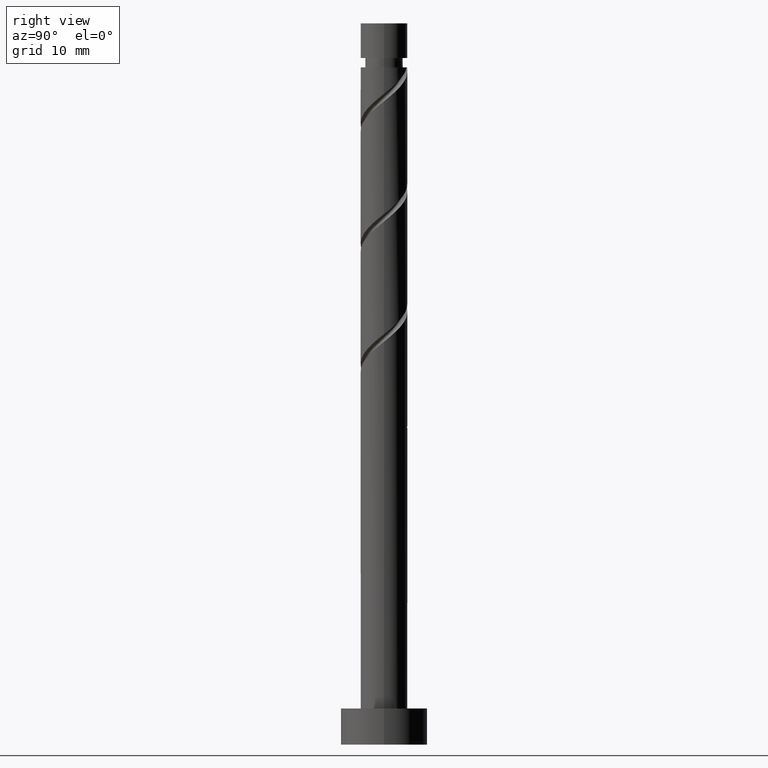
[diagram: clean part render]
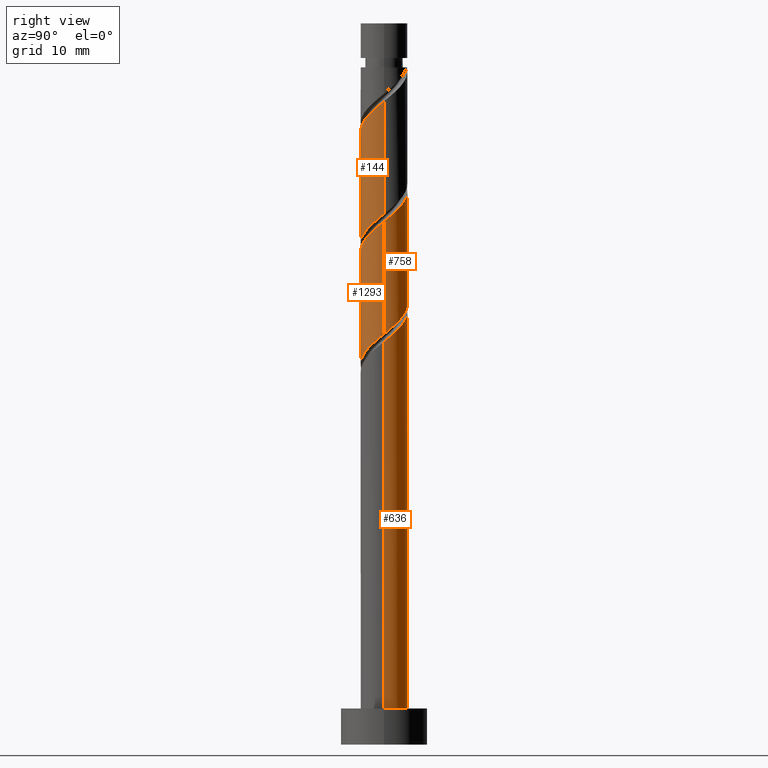
[diagram: same view with one multi-face feature highlighted, each face labeled with its STEP entity id]
A machine part, right view. The highlighted faces form ONE feature: a constant-radius fillet chain: 4 tangent blend faces with common blend radius 3.25 mm. The faces share edges in the B-rep.
Their STEP definitions:
[1] entity #144 (Cylinder):
#9 = DIRECTION ( 'NONE',  ( -1.000000000000000000, 0.000000000000000000, 0.000000000000000000 ) ) ;
#11 = CARTESIAN_POINT ( 'NONE',  ( -2.814480546000102112, -1.723252767229862537, 82.32699046842115820 ) ) ;
#39 =( BOUNDED_CURVE ( )  B_SPLINE_CURVE ( 2, ( #447, #914, #235, #354, #1368, #904, #899, #349, #228, #1137, #123, #571, #1026, #1484, #456, #792, #578, #888, #314, #1473, #1446 ),
 .UNSPECIFIED., .F., .T. ) 
 B_SPLINE_CURVE_WITH_KNOTS ( ( 3, 2, 2, 2, 2, 2, 2, 2, 2, 2, 3 ),
 ( 0.5545248053855290626, 0.5555555555555555802, 0.5694444444444444198, 0.5833333333333333703, 0.5972222222222222099, 0.6111111111111111605, 0.6250000000000000000, 0.6388888888888888395, 0.6527777777777777901, 0.6666666666666666297, 0.6795248053855290626 ),
 .UNSPECIFIED. ) 
 CURVE ( )  GEOMETRIC_REPRESENTATION_ITEM ( )  RATIONAL_B_SPLINE_CURVE ( ( 0.9071930855141184802, 0.9080659294509660917, 0.9090909090909061741, 0.8952797754656408591, 0.9090909090909061741, 0.8952797754656408591, 0.9090909090909061741, 0.8952797754656408591, 0.9090909090909061741, 0.8952797754656408591, 0.9090909090909061741, 0.8952797754656408591, 0.9090909090909061741, 0.8952797754656408591, 0.9090909090909061741, 0.8952797754656408591, 0.9090909090909061741, 0.8952797754656408591, 0.9090909090909061741, 0.8963047551055809414, 0.9071930855141184802 ) ) 
 REPRESENTATION_ITEM ( '' )  );
#58 = EDGE_CURVE ( 'NONE', #1297, #692, #666, .T. ) ;
#123 = CARTESIAN_POINT ( 'NONE',  ( 0.4815956274168009532, -3.214119732003307917, 69.82699046842114399 ) ) ;
#144 = ADVANCED_FACE ( 'NONE', ( #581 ), #1046, .T. ) ;
#228 = CARTESIAN_POINT ( 'NONE',  ( 1.551845548691958454, -2.855569188971780026, 70.75291639434708202 ) ) ;
#230 = CARTESIAN_POINT ( 'NONE',  ( 1.208343267675765720, -3.070961965091894008, 86.03069417212486769 ) ) ;
#235 = CARTESIAN_POINT ( 'NONE',  ( 3.248918234259666971, -0.08384692656885367468, 73.53069417212483927 ) ) ;
#244 = EDGE_CURVE ( 'NONE', #414, #296, #1379, .T. ) ;
#276 = ORIENTED_EDGE ( 'NONE', *, *, #58, .T. ) ;
#296 = VERTEX_POINT ( 'NONE', #709 ) ;
#314 = CARTESIAN_POINT ( 'NONE',  ( -3.081661828113088308, -1.032405141962541073, 66.12328676471744870 ) ) ;
#330 = CARTESIAN_POINT ( 'NONE',  ( 3.250000000000004885, 2.308070331495079945E-15, 89.20354298750649491 ) ) ;
#349 = CARTESIAN_POINT ( 'NONE',  ( 2.055359441987472557, -2.581936948845056090, 71.21587935731001551 ) ) ;
#354 = CARTESIAN_POINT ( 'NONE',  ( 3.234133758856097440, -0.6567188693845378289, 73.06773120916186315 ) ) ;
#358 = CARTESIAN_POINT ( 'NONE',  ( 3.250000000000000444, 3.980102097228898231E-16, 100.0000000000000000 ) ) ;
#381 = AXIS2_PLACEMENT_3D ( 'NONE', #1037, #1267, #9 ) ;
#394 = CARTESIAN_POINT ( 'NONE',  ( -3.248918234259673188, -0.08384692656885182893, 80.93810157953225826 ) ) ;
#414 = VERTEX_POINT ( 'NONE', #330 ) ;
#447 = CARTESIAN_POINT ( 'NONE',  ( 3.250000000000000000, -3.062488142113234545E-16, 73.59858609748397384 ) ) ;
#456 = CARTESIAN_POINT ( 'NONE',  ( -1.697072685567708961, -2.771722262402927850, 67.97513861656928214 ) ) ;
#467 = CARTESIAN_POINT ( 'NONE',  ( 0.6467418341193036380, -3.185000000000004494, 85.56773120916189157 ) ) ;
#551 = CARTESIAN_POINT ( 'NONE',  ( -3.250000000000000444, 0.000000000000000000, 100.0000000000000000 ) ) ;
#555 = CARTESIAN_POINT ( 'NONE',  ( 0.08514040056284115365, -3.299038034908117201, 85.10476824619892966 ) ) ;
#565 = CARTESIAN_POINT ( 'NONE',  ( -1.048331655396447459, -3.129201429098509291, 84.17884232027302005 ) ) ;
#571 = CARTESIAN_POINT ( 'NONE',  ( -0.08514040056284385982, -3.299038034908111428, 69.36402750545815366 ) ) ;
#578 = CARTESIAN_POINT ( 'NONE',  ( -2.542711525011296825, -2.024133913696108955, 67.04921269064335831 ) ) ;
#581 = FACE_OUTER_BOUND ( 'NONE', #712, .T. ) ;
#592 = ORIENTED_EDGE ( 'NONE', *, *, #1470, .F. ) ;
#666 = LINE ( 'NONE', #551, #711 ) ;
#692 = VERTEX_POINT ( 'NONE', #1295 ) ;
#696 = CARTESIAN_POINT ( 'NONE',  ( -2.055359441987476554, -2.581936948845059643, 83.25291639434709623 ) ) ;
#709 = CARTESIAN_POINT ( 'NONE',  ( 3.250000000000000000, -3.062488142113234545E-16, 73.59858609748397384 ) ) ;
#711 = VECTOR ( 'NONE', #785, 1000.000000000000000 ) ;
#712 = EDGE_LOOP ( 'NONE', ( #1115, #592, #276, #1153 ) ) ;
#752 =( BOUNDED_CURVE ( )  B_SPLINE_CURVE ( 2, ( #1072, #1258, #394, #805, #1269, #11, #920, #696, #1177, #565, #1029, #555, #467, #230, #1479, #1148, #915, #1016, #1043, #1034, #1139 ),
 .UNSPECIFIED., .F., .T. ) 
 B_SPLINE_CURVE_WITH_KNOTS ( ( 3, 2, 2, 2, 2, 2, 2, 2, 2, 2, 3 ),
 ( 0.5545248053855288406, 0.5555555555555555802, 0.5694444444444444198, 0.5833333333333332593, 0.5972222222222222099, 0.6111111111111111605, 0.6250000000000000000, 0.6388888888888888395, 0.6527777777777777901, 0.6666666666666667407, 0.6795248053855291737 ),
 .UNSPECIFIED. ) 
 CURVE ( )  GEOMETRIC_REPRESENTATION_ITEM ( )  RATIONAL_B_SPLINE_CURVE ( ( 0.9071930855141243644, 0.9080659294509720869, 0.9090909090909125023, 0.8952797754656470763, 0.9090909090909125023, 0.8952797754656470763, 0.9090909090909125023, 0.8952797754656470763, 0.9090909090909125023, 0.8952797754656470763, 0.9090909090909125023, 0.8952797754656470763, 0.9090909090909125023, 0.8952797754656470763, 0.9090909090909125023, 0.8952797754656470763, 0.9090909090909125023, 0.8952797754656470763, 0.9090909090909125023, 0.8963047551055870477, 0.9071930855141250305 ) ) 
 REPRESENTATION_ITEM ( '' )  );
#785 = DIRECTION ( 'NONE',  ( -0.000000000000000000, -0.000000000000000000, -1.000000000000000000 ) ) ;
#792 = CARTESIAN_POINT ( 'NONE',  ( -2.185802103459652646, -2.472482559713967909, 67.51217565360633444 ) ) ;
#802 = DIRECTION ( 'NONE',  ( -0.000000000000000000, -0.000000000000000000, -1.000000000000000000 ) ) ;
#805 = CARTESIAN_POINT ( 'NONE',  ( -3.234133758856102769, -0.6567188693845373848, 81.40106454249522017 ) ) ;
#888 = CARTESIAN_POINT ( 'NONE',  ( -2.899620946562940116, -1.575785267678251111, 66.58624972768039640 ) ) ;
#899 = CARTESIAN_POINT ( 'NONE',  ( 2.434919993993784004, -2.152594858037458980, 71.67884232027297742 ) ) ;
#904 = CARTESIAN_POINT ( 'NONE',  ( 2.814480546000095895, -1.723252767229862537, 72.14180528323595354 ) ) ;
#914 = CARTESIAN_POINT ( 'NONE',  ( 3.250000000000000000, -0.04193044157906965219, 73.56456872355161636 ) ) ;
#915 = CARTESIAN_POINT ( 'NONE',  ( 2.542711525011299489, -2.024133913696113396, 87.41958306101375342 ) ) ;
#920 = CARTESIAN_POINT ( 'NONE',  ( -2.434919993993788889, -2.152594858037460313, 82.78995343138410590 ) ) ;
#933 = EDGE_CURVE ( 'NONE', #296, #692, #39, .T. ) ;
#1016 = CARTESIAN_POINT ( 'NONE',  ( 2.899620946562943669, -1.575785267678254442, 87.88254602397670112 ) ) ;
#1026 = CARTESIAN_POINT ( 'NONE',  ( -0.6467418341193040821, -3.184999999999999609, 68.90106454249522017 ) ) ;
#1029 = CARTESIAN_POINT ( 'NONE',  ( -0.4815956274168030071, -3.214119732003312802, 84.64180528323596775 ) ) ;
#1034 = CARTESIAN_POINT ( 'NONE',  ( 3.250000000000005773, -0.5299267084164828168, 88.77362347514082330 ) ) ;
#1037 = CARTESIAN_POINT ( 'NONE',  ( 0.000000000000000000, 0.000000000000000000, 100.0000000000000000 ) ) ;
#1043 = CARTESIAN_POINT ( 'NONE',  ( 3.081661828113093637, -1.032405141962545292, 88.34550898693969145 ) ) ;
#1046 = CYLINDRICAL_SURFACE ( 'NONE', #381, 3.250000000000000444 ) ;
#1072 = CARTESIAN_POINT ( 'NONE',  ( -3.250000000000005773, 2.158680666026143248E-15, 80.87020965417312368 ) ) ;
#1115 = ORIENTED_EDGE ( 'NONE', *, *, #244, .F. ) ;
#1137 = CARTESIAN_POINT ( 'NONE',  ( 1.048331655396443907, -3.129201429098505294, 70.28995343138409169 ) ) ;
#1139 = CARTESIAN_POINT ( 'NONE',  ( 3.250000000000004885, 2.308070331495079551E-15, 89.20354298750648070 ) ) ;
#1145 = VECTOR ( 'NONE', #802, 1000.000000000000000 ) ;
#1148 = CARTESIAN_POINT ( 'NONE',  ( 2.185802103459654422, -2.472482559713971462, 86.95662009805079151 ) ) ;
#1153 = ORIENTED_EDGE ( 'NONE', *, *, #933, .F. ) ;
#1177 = CARTESIAN_POINT ( 'NONE',  ( -1.551845548691963117, -2.855569188971784467, 83.71587935731004393 ) ) ;
#1258 = CARTESIAN_POINT ( 'NONE',  ( -3.250000000000006217, -0.04193044157905831404, 80.90422702810549538 ) ) ;
#1267 = DIRECTION ( 'NONE',  ( -0.000000000000000000, -0.000000000000000000, -1.000000000000000000 ) ) ;
#1269 = CARTESIAN_POINT ( 'NONE',  ( -3.024307152428102885, -1.189985818307200072, 81.86402750545819629 ) ) ;
#1295 = CARTESIAN_POINT ( 'NONE',  ( -3.250000000000000000, -9.486243757277579299E-16, 65.26525276415064525 ) ) ;
#1297 = VERTEX_POINT ( 'NONE', #1325 ) ;
#1325 = CARTESIAN_POINT ( 'NONE',  ( -3.250000000000005773, 2.158680666026143248E-15, 80.87020965417312368 ) ) ;
#1368 = CARTESIAN_POINT ( 'NONE',  ( 3.024307152428096224, -1.189985818307198517, 72.60476824619890124 ) ) ;
#1379 = LINE ( 'NONE', #358, #1145 ) ;
#1446 = CARTESIAN_POINT ( 'NONE',  ( -3.250000000000000000, -9.486243757277579299E-16, 65.26525276415064525 ) ) ;
#1470 = EDGE_CURVE ( 'NONE', #1297, #414, #752, .T. ) ;
#1473 = CARTESIAN_POINT ( 'NONE',  ( -3.249999999999999556, -0.5299267084164832609, 65.69517227651626001 ) ) ;
#1479 = CARTESIAN_POINT ( 'NONE',  ( 1.697072685567710737, -2.771722262402933179, 86.49365713508781539 ) ) ;
#1484 = CARTESIAN_POINT ( 'NONE',  ( -1.208343267675765720, -3.070961965091886903, 68.43810157953224405 ) ) ;
[2] entity #758 (Cylinder):
#46 = CARTESIAN_POINT ( 'NONE',  ( 0.4815956274168050055, 3.214119732003312357, 76.30847194990262494 ) ) ;
#56 = VERTEX_POINT ( 'NONE', #1251 ) ;
#58 = EDGE_CURVE ( 'NONE', #1297, #692, #666, .T. ) ;
#69 = CARTESIAN_POINT ( 'NONE',  ( -0.6467418341193034159, 3.185000000000004494, 77.23439787582856297 ) ) ;
#71 = VECTOR ( 'NONE', #132, 1000.000000000000000 ) ;
#78 = EDGE_CURVE ( 'NONE', #692, #56, #387, .T. ) ;
#121 = CARTESIAN_POINT ( 'NONE',  ( -2.814480546000096339, 1.723252767229860538, 63.80847194990261784 ) ) ;
#132 = DIRECTION ( 'NONE',  ( -0.000000000000000000, -0.000000000000000000, -1.000000000000000000 ) ) ;
#165 = CARTESIAN_POINT ( 'NONE',  ( 3.248918234259673188, 0.08384692656885203710, 72.60476824619891545 ) ) ;
#167 = ORIENTED_EDGE ( 'NONE', *, *, #329, .F. ) ;
#173 = CARTESIAN_POINT ( 'NONE',  ( -3.250000000000005773, 2.158680666026143248E-15, 80.87020965417312368 ) ) ;
#205 = ORIENTED_EDGE ( 'NONE', *, *, #58, .F. ) ;
#271 = CYLINDRICAL_SURFACE ( 'NONE', #1005, 3.250000000000000444 ) ;
#281 = CARTESIAN_POINT ( 'NONE',  ( 1.551845548691963117, 2.855569188971783579, 75.38254602397670112 ) ) ;
#287 = CARTESIAN_POINT ( 'NONE',  ( -2.899620946562944557, 1.575785267678254442, 79.54921269064335831 ) ) ;
#294 = CARTESIAN_POINT ( 'NONE',  ( -1.208343267675765942, 3.070961965091893564, 77.69736083879152488 ) ) ;
#315 = CARTESIAN_POINT ( 'NONE',  ( 3.250000000000000000, -3.062488142113234545E-16, 56.93191943081733086 ) ) ;
#329 = EDGE_CURVE ( 'NONE', #1402, #1297, #1318, .T. ) ;
#333 = CARTESIAN_POINT ( 'NONE',  ( -3.250000000000000000, 0.04193044157906843789, 65.23123539021828776 ) ) ;
#387 =( BOUNDED_CURVE ( )  B_SPLINE_CURVE ( 2, ( #684, #333, #1352, #569, #1121, #121, #453, #1012, #445, #778, #1141, #896, #1247, #679, #903, #1003, #993, #661, #425, #1241, #315 ),
 .UNSPECIFIED., .F., .T. ) 
 B_SPLINE_CURVE_WITH_KNOTS ( ( 3, 2, 2, 2, 2, 2, 2, 2, 2, 2, 3 ),
 ( 0.6795248053855290626, 0.6805555555555555802, 0.6944444444444444198, 0.7083333333333333703, 0.7222222222222222099, 0.7361111111111111605, 0.7500000000000000000, 0.7638888888888888395, 0.7777777777777777901, 0.7916666666666666297, 0.8045248053855289516 ),
 .UNSPECIFIED. ) 
 CURVE ( )  GEOMETRIC_REPRESENTATION_ITEM ( )  RATIONAL_B_SPLINE_CURVE ( ( 0.9071930855141184802, 0.9080659294509660917, 0.9090909090909061741, 0.8952797754656408591, 0.9090909090909061741, 0.8952797754656408591, 0.9090909090909061741, 0.8952797754656408591, 0.9090909090909061741, 0.8952797754656408591, 0.9090909090909061741, 0.8952797754656408591, 0.9090909090909061741, 0.8952797754656408591, 0.9090909090909061741, 0.8952797754656408591, 0.9090909090909061741, 0.8952797754656408591, 0.9090909090909061741, 0.8963047551055810525, 0.9071930855141182581 ) ) 
 REPRESENTATION_ITEM ( '' )  );
#411 = CARTESIAN_POINT ( 'NONE',  ( -3.081661828113093637, 1.032405141962544182, 80.01217565360632022 ) ) ;
#425 = CARTESIAN_POINT ( 'NONE',  ( 3.081661828113088308, 1.032405141962542183, 57.78995343138409169 ) ) ;
#445 = CARTESIAN_POINT ( 'NONE',  ( -1.551845548691958454, 2.855569188971780026, 62.41958306101373211 ) ) ;
#453 = CARTESIAN_POINT ( 'NONE',  ( -2.434919993993784004, 2.152594858037458092, 63.34550898693966303 ) ) ;
#492 = CARTESIAN_POINT ( 'NONE',  ( 3.250000000000005329, 0.04193044157906547498, 72.57089369477215257 ) ) ;
#519 = EDGE_LOOP ( 'NONE', ( #167, #1292, #976, #205 ) ) ;
#526 = CARTESIAN_POINT ( 'NONE',  ( 2.814480546000103001, 1.723252767229860760, 73.99365713508780118 ) ) ;
#530 = DIRECTION ( 'NONE',  ( -1.000000000000000000, 0.000000000000000000, 0.000000000000000000 ) ) ;
#551 = CARTESIAN_POINT ( 'NONE',  ( -3.250000000000000444, 0.000000000000000000, 100.0000000000000000 ) ) ;
#564 = EDGE_CURVE ( 'NONE', #1402, #56, #694, .T. ) ;
#569 = CARTESIAN_POINT ( 'NONE',  ( -3.234133758856097440, 0.6567188693845371628, 64.73439787582854876 ) ) ;
#614 = CARTESIAN_POINT ( 'NONE',  ( 3.250000000000004885, -1.852431851814821124E-15, 72.53687632083978087 ) ) ;
#661 = CARTESIAN_POINT ( 'NONE',  ( 2.899620946562940116, 1.575785267678250889, 58.25291639434706070 ) ) ;
#666 = LINE ( 'NONE', #551, #711 ) ;
#679 = CARTESIAN_POINT ( 'NONE',  ( 1.208343267675764832, 3.070961965091887791, 60.10476824619892255 ) ) ;
#684 = CARTESIAN_POINT ( 'NONE',  ( -3.250000000000000000, -9.486243757277579299E-16, 65.26525276415064525 ) ) ;
#692 = VERTEX_POINT ( 'NONE', #1295 ) ;
#694 = LINE ( 'NONE', #1392, #71 ) ;
#711 = VECTOR ( 'NONE', #785, 1000.000000000000000 ) ;
#720 = CARTESIAN_POINT ( 'NONE',  ( 0.000000000000000000, 0.000000000000000000, 100.0000000000000000 ) ) ;
#731 = CARTESIAN_POINT ( 'NONE',  ( 1.048331655396449014, 3.129201429098509291, 75.84550898693964882 ) ) ;
#758 = ADVANCED_FACE ( 'NONE', ( #826 ), #271, .T. ) ;
#778 = CARTESIAN_POINT ( 'NONE',  ( -1.048331655396445239, 3.129201429098505294, 61.95662009805075598 ) ) ;
#785 = DIRECTION ( 'NONE',  ( -0.000000000000000000, -0.000000000000000000, -1.000000000000000000 ) ) ;
#826 = FACE_OUTER_BOUND ( 'NONE', #519, .T. ) ;
#836 = CARTESIAN_POINT ( 'NONE',  ( 2.434919993993788445, 2.152594858037461645, 74.45662009805080572 ) ) ;
#861 = CARTESIAN_POINT ( 'NONE',  ( 3.234133758856102769, 0.6567188693845369407, 73.06773120916187736 ) ) ;
#896 = CARTESIAN_POINT ( 'NONE',  ( 0.08514040056284269409, 3.299038034908110983, 61.03069417212484638 ) ) ;
#903 = CARTESIAN_POINT ( 'NONE',  ( 1.697072685567710737, 2.771722262402926074, 59.64180528323596064 ) ) ;
#949 = CARTESIAN_POINT ( 'NONE',  ( 3.024307152428102885, 1.189985818307199406, 73.53069417212486769 ) ) ;
#960 = CARTESIAN_POINT ( 'NONE',  ( -3.250000000000001776, 0.5299267084164943631, 80.44029014180749471 ) ) ;
#974 = CARTESIAN_POINT ( 'NONE',  ( -0.08514040056284212510, 3.299038034908117201, 76.77143491286557264 ) ) ;
#976 = ORIENTED_EDGE ( 'NONE', *, *, #78, .F. ) ;
#993 = CARTESIAN_POINT ( 'NONE',  ( 2.542711525011296825, 2.024133913696108511, 58.71587935731002261 ) ) ;
#1003 = CARTESIAN_POINT ( 'NONE',  ( 2.185802103459653534, 2.472482559713966577, 59.17884232027299163 ) ) ;
#1005 = AXIS2_PLACEMENT_3D ( 'NONE', #720, #1098, #530 ) ;
#1012 = CARTESIAN_POINT ( 'NONE',  ( -2.055359441987472557, 2.581936948845056090, 62.88254602397670823 ) ) ;
#1020 = CARTESIAN_POINT ( 'NONE',  ( 3.250000000000004885, -1.852431851814821124E-15, 72.53687632083978087 ) ) ;
#1098 = DIRECTION ( 'NONE',  ( -0.000000000000000000, -0.000000000000000000, -1.000000000000000000 ) ) ;
#1121 = CARTESIAN_POINT ( 'NONE',  ( -3.024307152428096224, 1.189985818307198961, 64.27143491286560106 ) ) ;
#1141 = CARTESIAN_POINT ( 'NONE',  ( -0.4815956274168011197, 3.214119732003307917, 61.49365713508782250 ) ) ;
#1193 = CARTESIAN_POINT ( 'NONE',  ( -2.185802103459654866, 2.472482559713971462, 78.62328676471743449 ) ) ;
#1241 = CARTESIAN_POINT ( 'NONE',  ( 3.249999999999997780, 0.5299267084164858144, 57.36183894318293852 ) ) ;
#1247 = CARTESIAN_POINT ( 'NONE',  ( 0.6467418341193044151, 3.184999999999999609, 60.56773120916188446 ) ) ;
#1251 = CARTESIAN_POINT ( 'NONE',  ( 3.250000000000000000, -3.062488142113234545E-16, 56.93191943081732376 ) ) ;
#1292 = ORIENTED_EDGE ( 'NONE', *, *, #564, .T. ) ;
#1295 = CARTESIAN_POINT ( 'NONE',  ( -3.250000000000000000, -9.486243757277579299E-16, 65.26525276415064525 ) ) ;
#1297 = VERTEX_POINT ( 'NONE', #1325 ) ;
#1303 = CARTESIAN_POINT ( 'NONE',  ( 2.055359441987477442, 2.581936948845059199, 74.91958306101373921 ) ) ;
#1317 = CARTESIAN_POINT ( 'NONE',  ( -2.542711525011299489, 2.024133913696113396, 79.08624972768042483 ) ) ;
#1318 =( BOUNDED_CURVE ( )  B_SPLINE_CURVE ( 2, ( #614, #492, #165, #861, #949, #526, #836, #1303, #281, #731, #46, #974, #69, #294, #1407, #1193, #1317, #287, #411, #960, #173 ),
 .UNSPECIFIED., .F., .T. ) 
 B_SPLINE_CURVE_WITH_KNOTS ( ( 3, 2, 2, 2, 2, 2, 2, 2, 2, 2, 3 ),
 ( 0.4295248053855290071, 0.4305555555555555802, 0.4444444444444444198, 0.4583333333333333703, 0.4722222222222222099, 0.4861111111111111605, 0.5000000000000000000, 0.5138888888888888395, 0.5277777777777777901, 0.5416666666666667407, 0.5545248053855288406 ),
 .UNSPECIFIED. ) 
 CURVE ( )  GEOMETRIC_REPRESENTATION_ITEM ( )  RATIONAL_B_SPLINE_CURVE ( ( 0.9071930855141245864, 0.9080659294509723090, 0.9090909090909125023, 0.8952797754656470763, 0.9090909090909125023, 0.8952797754656470763, 0.9090909090909125023, 0.8952797754656470763, 0.9090909090909125023, 0.8952797754656470763, 0.9090909090909125023, 0.8952797754656470763, 0.9090909090909125023, 0.8952797754656470763, 0.9090909090909125023, 0.8952797754656470763, 0.9090909090909125023, 0.8952797754656470763, 0.9090909090909125023, 0.8963047551055873807, 0.9071930855141243644 ) ) 
 REPRESENTATION_ITEM ( '' )  );
#1325 = CARTESIAN_POINT ( 'NONE',  ( -3.250000000000005773, 2.158680666026143248E-15, 80.87020965417312368 ) ) ;
#1352 = CARTESIAN_POINT ( 'NONE',  ( -3.248918234259666971, 0.08384692656885250894, 65.19736083879152488 ) ) ;
#1392 = CARTESIAN_POINT ( 'NONE',  ( 3.250000000000000444, 3.980102097228898231E-16, 100.0000000000000000 ) ) ;
#1402 = VERTEX_POINT ( 'NONE', #1020 ) ;
#1407 = CARTESIAN_POINT ( 'NONE',  ( -1.697072685567710959, 2.771722262402933179, 78.16032380175448679 ) ) ;
[3] entity #1293 (Cylinder):
#30 = EDGE_CURVE ( 'NONE', #56, #388, #288, .T. ) ;
#56 = VERTEX_POINT ( 'NONE', #1251 ) ;
#63 = DIRECTION ( 'NONE',  ( -0.000000000000000000, -0.000000000000000000, -1.000000000000000000 ) ) ;
#71 = VECTOR ( 'NONE', #132, 1000.000000000000000 ) ;
#89 = CARTESIAN_POINT ( 'NONE',  ( -0.08514040056284385982, -3.299038034908111428, 52.69736083879151778 ) ) ;
#94 = CARTESIAN_POINT ( 'NONE',  ( -3.024307152428102885, -1.189985818307200072, 65.19736083879153909 ) ) ;
#96 = CARTESIAN_POINT ( 'NONE',  ( -1.208343267675765720, -3.070961965091886903, 51.77143491286560106 ) ) ;
#132 = DIRECTION ( 'NONE',  ( -0.000000000000000000, -0.000000000000000000, -1.000000000000000000 ) ) ;
#181 = FACE_OUTER_BOUND ( 'NONE', #535, .T. ) ;
#202 = CARTESIAN_POINT ( 'NONE',  ( -3.081661828113088308, -1.032405141962541073, 49.45662009805077020 ) ) ;
#211 = CARTESIAN_POINT ( 'NONE',  ( -1.697072685567708961, -2.771722262402927850, 51.30847194990262494 ) ) ;
#215 = CARTESIAN_POINT ( 'NONE',  ( -0.4815956274168030071, -3.214119732003312802, 67.97513861656928214 ) ) ;
#233 = CARTESIAN_POINT ( 'NONE',  ( -2.899620946562940116, -1.575785267678251111, 49.91958306101373211 ) ) ;
#288 =( BOUNDED_CURVE ( )  B_SPLINE_CURVE ( 2, ( #404, #438, #1332, #673, #1234, #879, #1135, #1130, #1025, #1114, #340, #89, #558, #96, #211, #1019, #889, #233, #202, #1358, #791 ),
 .UNSPECIFIED., .F., .T. ) 
 B_SPLINE_CURVE_WITH_KNOTS ( ( 3, 2, 2, 2, 2, 2, 2, 2, 2, 2, 3 ),
 ( 0.8045248053855289516, 0.8055555555555555802, 0.8194444444444444198, 0.8333333333333333703, 0.8472222222222222099, 0.8611111111111111605, 0.8750000000000000000, 0.8888888888888888395, 0.9027777777777777901, 0.9166666666666666297, 0.9295248053855290626 ),
 .UNSPECIFIED. ) 
 CURVE ( )  GEOMETRIC_REPRESENTATION_ITEM ( )  RATIONAL_B_SPLINE_CURVE ( ( 0.9071930855141182581, 0.9080659294509659807, 0.9090909090909061741, 0.8952797754656408591, 0.9090909090909061741, 0.8952797754656408591, 0.9090909090909061741, 0.8952797754656408591, 0.9090909090909061741, 0.8952797754656408591, 0.9090909090909061741, 0.8952797754656408591, 0.9090909090909061741, 0.8952797754656408591, 0.9090909090909061741, 0.8952797754656408591, 0.9090909090909061741, 0.8952797754656408591, 0.9090909090909061741, 0.8963047551055809414, 0.9071930855141184802 ) ) 
 REPRESENTATION_ITEM ( '' )  );
#336 = CARTESIAN_POINT ( 'NONE',  ( 2.185802103459654422, -2.472482559713971462, 70.28995343138410590 ) ) ;
#340 = CARTESIAN_POINT ( 'NONE',  ( 0.4815956274168009532, -3.214119732003307917, 53.16032380175447258 ) ) ;
#388 = VERTEX_POINT ( 'NONE', #633 ) ;
#390 = EDGE_CURVE ( 'NONE', #952, #388, #1323, .T. ) ;
#400 = EDGE_CURVE ( 'NONE', #952, #1402, #656, .T. ) ;
#404 = CARTESIAN_POINT ( 'NONE',  ( 3.250000000000000000, -3.062488142113234545E-16, 56.93191943081733086 ) ) ;
#438 = CARTESIAN_POINT ( 'NONE',  ( 3.249999999999999556, -0.04193044157906513497, 56.89790205688495917 ) ) ;
#442 = CARTESIAN_POINT ( 'NONE',  ( 1.208343267675765720, -3.070961965091894008, 69.36402750545816787 ) ) ;
#450 = CARTESIAN_POINT ( 'NONE',  ( -2.814480546000102112, -1.723252767229862537, 65.66032380175447258 ) ) ;
#504 = DIRECTION ( 'NONE',  ( -1.000000000000000000, 0.000000000000000000, 0.000000000000000000 ) ) ;
#535 = EDGE_LOOP ( 'NONE', ( #733, #1282, #650, #1084 ) ) ;
#537 = CARTESIAN_POINT ( 'NONE',  ( 0.000000000000000000, 0.000000000000000000, 100.0000000000000000 ) ) ;
#556 = CARTESIAN_POINT ( 'NONE',  ( -2.055359441987476554, -2.581936948845059643, 66.58624972768039640 ) ) ;
#558 = CARTESIAN_POINT ( 'NONE',  ( -0.6467418341193040821, -3.184999999999999609, 52.23439787582854876 ) ) ;
#564 = EDGE_CURVE ( 'NONE', #1402, #56, #694, .T. ) ;
#566 = CARTESIAN_POINT ( 'NONE',  ( -1.551845548691963117, -2.855569188971784467, 67.04921269064337253 ) ) ;
#633 = CARTESIAN_POINT ( 'NONE',  ( -3.250000000000000000, -9.486243757277579299E-16, 48.59858609748397384 ) ) ;
#648 = CARTESIAN_POINT ( 'NONE',  ( 2.899620946562943669, -1.575785267678254442, 71.21587935731002972 ) ) ;
#650 = ORIENTED_EDGE ( 'NONE', *, *, #390, .T. ) ;
#656 =( BOUNDED_CURVE ( )  B_SPLINE_CURVE ( 2, ( #854, #1209, #1095, #1438, #94, #450, #867, #556, #566, #1008, #215, #1365, #1471, #442, #886, #336, #1349, #648, #1464, #1214, #781 ),
 .UNSPECIFIED., .F., .T. ) 
 B_SPLINE_CURVE_WITH_KNOTS ( ( 3, 2, 2, 2, 2, 2, 2, 2, 2, 2, 3 ),
 ( 0.3045248053855291182, 0.3055555555555555802, 0.3194444444444444198, 0.3333333333333333703, 0.3472222222222222099, 0.3611111111111111605, 0.3750000000000000000, 0.3888888888888888395, 0.4027777777777777901, 0.4166666666666666297, 0.4295248053855290071 ),
 .UNSPECIFIED. ) 
 CURVE ( )  GEOMETRIC_REPRESENTATION_ITEM ( )  RATIONAL_B_SPLINE_CURVE ( ( 0.9071930855141249195, 0.9080659294509725310, 0.9090909090909125023, 0.8952797754656470763, 0.9090909090909125023, 0.8952797754656470763, 0.9090909090909125023, 0.8952797754656470763, 0.9090909090909125023, 0.8952797754656470763, 0.9090909090909125023, 0.8952797754656470763, 0.9090909090909125023, 0.8952797754656470763, 0.9090909090909125023, 0.8952797754656470763, 0.9090909090909125023, 0.8952797754656470763, 0.9090909090909125023, 0.8963047551055872697, 0.9071930855141245864 ) ) 
 REPRESENTATION_ITEM ( '' )  );
#673 = CARTESIAN_POINT ( 'NONE',  ( 3.234133758856097440, -0.6567188693845378289, 56.40106454249522017 ) ) ;
#694 = LINE ( 'NONE', #1392, #71 ) ;
#733 = ORIENTED_EDGE ( 'NONE', *, *, #564, .F. ) ;
#747 = CARTESIAN_POINT ( 'NONE',  ( -3.250000000000000444, 0.000000000000000000, 100.0000000000000000 ) ) ;
#762 = AXIS2_PLACEMENT_3D ( 'NONE', #537, #63, #504 ) ;
#781 = CARTESIAN_POINT ( 'NONE',  ( 3.250000000000004885, -1.852431851814821124E-15, 72.53687632083978087 ) ) ;
#791 = CARTESIAN_POINT ( 'NONE',  ( -3.250000000000000000, -9.486243757277579299E-16, 48.59858609748397384 ) ) ;
#854 = CARTESIAN_POINT ( 'NONE',  ( -3.250000000000004885, 1.807614952174140588E-15, 64.20354298750648070 ) ) ;
#867 = CARTESIAN_POINT ( 'NONE',  ( -2.434919993993788889, -2.152594858037460313, 66.12328676471746292 ) ) ;
#879 = CARTESIAN_POINT ( 'NONE',  ( 2.814480546000095895, -1.723252767229862537, 55.47513861656929635 ) ) ;
#886 = CARTESIAN_POINT ( 'NONE',  ( 1.697072685567710737, -2.771722262402933179, 69.82699046842115820 ) ) ;
#889 = CARTESIAN_POINT ( 'NONE',  ( -2.542711525011296825, -2.024133913696108955, 50.38254602397670823 ) ) ;
#952 = VERTEX_POINT ( 'NONE', #1456 ) ;
#1008 = CARTESIAN_POINT ( 'NONE',  ( -1.048331655396447459, -3.129201429098509291, 67.51217565360634865 ) ) ;
#1019 = CARTESIAN_POINT ( 'NONE',  ( -2.185802103459652646, -2.472482559713967909, 50.84550898693966303 ) ) ;
#1020 = CARTESIAN_POINT ( 'NONE',  ( 3.250000000000004885, -1.852431851814821124E-15, 72.53687632083978087 ) ) ;
#1025 = CARTESIAN_POINT ( 'NONE',  ( 1.551845548691958454, -2.855569188971780026, 54.08624972768039640 ) ) ;
#1084 = ORIENTED_EDGE ( 'NONE', *, *, #30, .F. ) ;
#1089 = DIRECTION ( 'NONE',  ( -0.000000000000000000, -0.000000000000000000, -1.000000000000000000 ) ) ;
#1090 = CYLINDRICAL_SURFACE ( 'NONE', #762, 3.250000000000000444 ) ;
#1095 = CARTESIAN_POINT ( 'NONE',  ( -3.248918234259673188, -0.08384692656885182893, 64.27143491286560106 ) ) ;
#1096 = VECTOR ( 'NONE', #1089, 1000.000000000000000 ) ;
#1114 = CARTESIAN_POINT ( 'NONE',  ( 1.048331655396443907, -3.129201429098505294, 53.62328676471744870 ) ) ;
#1130 = CARTESIAN_POINT ( 'NONE',  ( 2.055359441987472557, -2.581936948845056090, 54.54921269064337253 ) ) ;
#1135 = CARTESIAN_POINT ( 'NONE',  ( 2.434919993993784004, -2.152594858037458980, 55.01217565360633444 ) ) ;
#1209 = CARTESIAN_POINT ( 'NONE',  ( -3.250000000000005329, -0.04193044157906990893, 64.23756036143883819 ) ) ;
#1214 = CARTESIAN_POINT ( 'NONE',  ( 3.250000000000003109, -0.5299267084164891450, 72.10695680847418032 ) ) ;
#1234 = CARTESIAN_POINT ( 'NONE',  ( 3.024307152428096224, -1.189985818307198517, 55.93810157953225115 ) ) ;
#1251 = CARTESIAN_POINT ( 'NONE',  ( 3.250000000000000000, -3.062488142113234545E-16, 56.93191943081732376 ) ) ;
#1282 = ORIENTED_EDGE ( 'NONE', *, *, #400, .F. ) ;
#1293 = ADVANCED_FACE ( 'NONE', ( #181 ), #1090, .T. ) ;
#1323 = LINE ( 'NONE', #747, #1096 ) ;
#1332 = CARTESIAN_POINT ( 'NONE',  ( 3.248918234259666971, -0.08384692656885367468, 56.86402750545818208 ) ) ;
#1349 = CARTESIAN_POINT ( 'NONE',  ( 2.542711525011299489, -2.024133913696113396, 70.75291639434709623 ) ) ;
#1358 = CARTESIAN_POINT ( 'NONE',  ( -3.249999999999999556, -0.5299267084164832609, 49.02850560984959571 ) ) ;
#1365 = CARTESIAN_POINT ( 'NONE',  ( 0.08514040056284115365, -3.299038034908117201, 68.43810157953224405 ) ) ;
#1392 = CARTESIAN_POINT ( 'NONE',  ( 3.250000000000000444, 3.980102097228898231E-16, 100.0000000000000000 ) ) ;
#1402 = VERTEX_POINT ( 'NONE', #1020 ) ;
#1438 = CARTESIAN_POINT ( 'NONE',  ( -3.234133758856102769, -0.6567188693845373848, 64.73439787582856297 ) ) ;
#1456 = CARTESIAN_POINT ( 'NONE',  ( -3.250000000000004885, 1.807614952174140588E-15, 64.20354298750648070 ) ) ;
#1464 = CARTESIAN_POINT ( 'NONE',  ( 3.081661828113093637, -1.032405141962545292, 71.67884232027299163 ) ) ;
#1471 = CARTESIAN_POINT ( 'NONE',  ( 0.6467418341193036380, -3.185000000000004494, 68.90106454249522017 ) ) ;
[4] entity #636 (Cylinder):
#22 = CARTESIAN_POINT ( 'NONE',  ( -2.055359441987472557, 2.581936948845056090, 46.21587935731003682 ) ) ;
#36 = CARTESIAN_POINT ( 'NONE',  ( 3.250000000000004885, -1.852431851814821124E-15, 55.87020965417312368 ) ) ;
#65 = CARTESIAN_POINT ( 'NONE',  ( 0.000000000000000000, 0.000000000000000000, 100.0000000000000000 ) ) ;
#91 = CARTESIAN_POINT ( 'NONE',  ( -3.250000000000003109, 0.5299267084164897001, 47.10695680847418032 ) ) ;
#99 = CARTESIAN_POINT ( 'NONE',  ( 0.000000000000000000, 0.000000000000000000, 43.90106454249525569 ) ) ;
#100 = CARTESIAN_POINT ( 'NONE',  ( -1.208343267675765942, 3.070961965091893564, 61.03069417212484638 ) ) ;
#106 = CARTESIAN_POINT ( 'NONE',  ( -0.08514040056284212510, 3.299038034908117201, 60.10476824619892255 ) ) ;
#143 = VERTEX_POINT ( 'NONE', #689 ) ;
#161 = EDGE_LOOP ( 'NONE', ( #1423, #1319, #529, #871, #299, #719, #806, #1411 ) ) ;
#170 = AXIS2_PLACEMENT_3D ( 'NONE', #477, #707, #934 ) ;
#172 = AXIS2_PLACEMENT_3D ( 'NONE', #99, #204, #334 ) ;
#199 = LINE ( 'NONE', #658, #927 ) ;
#204 = DIRECTION ( 'NONE',  ( -2.370375316168902674E-30, -1.067522139062649961E-14, -1.000000000000000000 ) ) ;
#206 = CARTESIAN_POINT ( 'NONE',  ( -3.081661828113093637, 1.032405141962544182, 46.67884232027299873 ) ) ;
#224 = CARTESIAN_POINT ( 'NONE',  ( 3.250000000000004885, -1.852431851814821124E-15, 55.87020965417312368 ) ) ;
#278 = DIRECTION ( 'NONE',  ( -1.000000000000000000, 0.000000000000000000, 0.000000000000000000 ) ) ;
#299 = ORIENTED_EDGE ( 'NONE', *, *, #863, .F. ) ;
#300 = CARTESIAN_POINT ( 'NONE',  ( -2.899620946562944557, 1.575785267678254442, 46.21587935731003682 ) ) ;
#308 = CARTESIAN_POINT ( 'NONE',  ( -2.899620946562944557, 1.575785267678254442, 62.88254602397672244 ) ) ;
#309 = CARTESIAN_POINT ( 'NONE',  ( -3.250000000000004885, 1.807614952174140588E-15, 47.53687632083978087 ) ) ;
#319 = CARTESIAN_POINT ( 'NONE',  ( -2.185802103459654866, 2.472482559713971462, 61.95662009805077730 ) ) ;
#327 = CARTESIAN_POINT ( 'NONE',  ( -2.185802103459654866, 2.472482559713971462, 45.28995343138411300 ) ) ;
#334 = DIRECTION ( 'NONE',  ( 0.000000000000000000, 1.000000000000000000, -1.067522139062650435E-14 ) ) ;
#383 = VECTOR ( 'NONE', #1000, 1000.000000000000000 ) ;
#388 = VERTEX_POINT ( 'NONE', #633 ) ;
#390 = EDGE_CURVE ( 'NONE', #952, #388, #1323, .T. ) ;
#391 = CYLINDRICAL_SURFACE ( 'NONE', #1312, 3.250000000000000444 ) ;
#398 = VERTEX_POINT ( 'NONE', #642 ) ;
#419 = CARTESIAN_POINT ( 'NONE',  ( 1.551845548691963117, 2.855569188971783579, 58.71587935731003682 ) ) ;
#440 = CARTESIAN_POINT ( 'NONE',  ( -2.542711525011299489, 2.024133913696113396, 45.75291639434708202 ) ) ;
#476 = EDGE_CURVE ( 'NONE', #697, #398, #199, .T. ) ;
#477 = CARTESIAN_POINT ( 'NONE',  ( 0.000000000000000000, 0.000000000000000000, 5.000000000000000000 ) ) ;
#494 = EDGE_CURVE ( 'NONE', #1170, #143, #1127, .T. ) ;
#495 = VERTEX_POINT ( 'NONE', #1454 ) ;
#506 = FACE_OUTER_BOUND ( 'NONE', #161, .T. ) ;
#529 = ORIENTED_EDGE ( 'NONE', *, *, #545, .T. ) ;
#540 = CARTESIAN_POINT ( 'NONE',  ( -3.250000000000000444, 0.000000000000000000, 100.0000000000000000 ) ) ;
#545 = EDGE_CURVE ( 'NONE', #398, #143, #1385, .T. ) ;
#561 = CARTESIAN_POINT ( 'NONE',  ( -1.697072685567710959, 2.771722262402933179, 61.49365713508782250 ) ) ;
#585 = CARTESIAN_POINT ( 'NONE',  ( -2.434919993993784004, 2.152594858037458092, 46.67884232027299873 ) ) ;
#601 = CIRCLE ( 'NONE', #172, 3.250000000000000444 ) ;
#633 = CARTESIAN_POINT ( 'NONE',  ( -3.250000000000000000, -9.486243757277579299E-16, 48.59858609748397384 ) ) ;
#636 = ADVANCED_FACE ( 'NONE', ( #506 ), #391, .T. ) ;
#642 = CARTESIAN_POINT ( 'NONE',  ( 3.250000000000000444, 3.980102097228898231E-16, 5.000000000000000000 ) ) ;
#658 = CARTESIAN_POINT ( 'NONE',  ( 3.250000000000000444, 3.980102097228898231E-16, 100.0000000000000000 ) ) ;
#667 = CARTESIAN_POINT ( 'NONE',  ( 2.814480546000103001, 1.723252767229860760, 57.32699046842114399 ) ) ;
#689 = CARTESIAN_POINT ( 'NONE',  ( -3.250000000000000444, 0.000000000000000000, 5.000000000000000000 ) ) ;
#697 = VERTEX_POINT ( 'NONE', #36 ) ;
#707 = DIRECTION ( 'NONE',  ( 0.000000000000000000, 0.000000000000000000, 1.000000000000000000 ) ) ;
#713 = CARTESIAN_POINT ( 'NONE',  ( 0.08514040056284269409, 3.299038034908110983, 44.36402750545816787 ) ) ;
#719 = ORIENTED_EDGE ( 'NONE', *, *, #1401, .T. ) ;
#747 = CARTESIAN_POINT ( 'NONE',  ( -3.250000000000000444, 0.000000000000000000, 100.0000000000000000 ) ) ;
#766 = CARTESIAN_POINT ( 'NONE',  ( -3.024307152428096224, 1.189985818307198961, 47.60476824619892966 ) ) ;
#773 = CARTESIAN_POINT ( 'NONE',  ( 3.250000000000005329, 0.04193044157906774400, 55.90422702810548117 ) ) ;
#784 = CARTESIAN_POINT ( 'NONE',  ( 0.6467418341193044151, 3.185000000000000053, 43.90106454249522017 ) ) ;
#798 = EDGE_CURVE ( 'NONE', #697, #952, #1477, .T. ) ;
#806 = ORIENTED_EDGE ( 'NONE', *, *, #1203, .F. ) ;
#817 = CARTESIAN_POINT ( 'NONE',  ( -1.551845548691958454, 2.855569188971780026, 45.75291639434707491 ) ) ;
#831 = CARTESIAN_POINT ( 'NONE',  ( -1.048331655396445239, 3.129201429098505294, 45.28995343138410590 ) ) ;
#863 = EDGE_CURVE ( 'NONE', #495, #1170, #1300, .T. ) ;
#865 = CARTESIAN_POINT ( 'NONE',  ( -0.6467418341193034159, 3.185000000000004494, 60.56773120916190578 ) ) ;
#871 = ORIENTED_EDGE ( 'NONE', *, *, #494, .F. ) ;
#872 = CARTESIAN_POINT ( 'NONE',  ( 3.248918234259673188, 0.08384692656885203710, 55.93810157953224405 ) ) ;
#873 = CARTESIAN_POINT ( 'NONE',  ( -3.248918234259666971, 0.08384692656885250894, 48.53069417212484638 ) ) ;
#883 = CARTESIAN_POINT ( 'NONE',  ( -3.250000000000005329, 0.5299267084164830388, 63.77362347514084462 ) ) ;
#891 = CARTESIAN_POINT ( 'NONE',  ( -0.6467418341193034159, 3.185000000000004494, 43.90106454249522017 ) ) ;
#894 =( BOUNDED_CURVE ( )  B_SPLINE_CURVE ( 2, ( #997, #1450, #873, #1338, #766, #1418, #585, #22, #817, #831, #1163, #713, #1172 ),
 .UNSPECIFIED., .F., .T. ) 
 B_SPLINE_CURVE_WITH_KNOTS ( ( 3, 2, 2, 2, 2, 2, 3 ),
 ( 0.9295248053855290626, 0.9305555555555555802, 0.9444444444444444198, 0.9583333333333333703, 0.9722222222222222099, 0.9861111111111111605, 1.000000000000000000 ),
 .UNSPECIFIED. ) 
 CURVE ( )  GEOMETRIC_REPRESENTATION_ITEM ( )  RATIONAL_B_SPLINE_CURVE ( ( 0.9071930855141184802, 0.9080659294509660917, 0.9090909090909061741, 0.8952797754656408591, 0.9090909090909061741, 0.8952797754656408591, 0.9090909090909061741, 0.8952797754656408591, 0.9090909090909061741, 0.8952797754656408591, 0.9090909090909061741, 0.8952797754656408591, 0.9090909090909061741 ) ) 
 REPRESENTATION_ITEM ( '' )  );
#927 = VECTOR ( 'NONE', #1111, 1000.000000000000000 ) ;
#934 = DIRECTION ( 'NONE',  ( 1.000000000000000000, 0.000000000000000000, 0.000000000000000000 ) ) ;
#952 = VERTEX_POINT ( 'NONE', #1456 ) ;
#979 = VERTEX_POINT ( 'NONE', #784 ) ;
#996 = CARTESIAN_POINT ( 'NONE',  ( -1.697072685567710959, 2.771722262402933179, 44.82699046842114399 ) ) ;
#997 = CARTESIAN_POINT ( 'NONE',  ( -3.250000000000000000, -9.486243757277579299E-16, 48.59858609748397384 ) ) ;
#1000 = DIRECTION ( 'NONE',  ( -0.000000000000000000, -0.000000000000000000, -1.000000000000000000 ) ) ;
#1089 = DIRECTION ( 'NONE',  ( -0.000000000000000000, -0.000000000000000000, -1.000000000000000000 ) ) ;
#1096 = VECTOR ( 'NONE', #1089, 1000.000000000000000 ) ;
#1107 = CARTESIAN_POINT ( 'NONE',  ( 1.048331655396449014, 3.129201429098509291, 59.17884232027300584 ) ) ;
#1111 = DIRECTION ( 'NONE',  ( -0.000000000000000000, -0.000000000000000000, -1.000000000000000000 ) ) ;
#1116 = CARTESIAN_POINT ( 'NONE',  ( -1.208343267675765942, 3.070961965091893564, 44.36402750545816787 ) ) ;
#1127 = LINE ( 'NONE', #540, #383 ) ;
#1163 = CARTESIAN_POINT ( 'NONE',  ( -0.4815956274168011197, 3.214119732003307917, 44.82699046842113688 ) ) ;
#1170 = VERTEX_POINT ( 'NONE', #309 ) ;
#1172 = CARTESIAN_POINT ( 'NONE',  ( 0.6467418341193044151, 3.185000000000000053, 43.90106454249522017 ) ) ;
#1203 = EDGE_CURVE ( 'NONE', #388, #979, #894, .T. ) ;
#1211 = CARTESIAN_POINT ( 'NONE',  ( -3.250000000000004885, 1.807614952174140588E-15, 47.53687632083978087 ) ) ;
#1221 = CARTESIAN_POINT ( 'NONE',  ( 2.434919993993788445, 2.152594858037461645, 57.78995343138411300 ) ) ;
#1230 = CARTESIAN_POINT ( 'NONE',  ( -3.250000000000004885, 1.807614952174140588E-15, 64.20354298750648070 ) ) ;
#1298 = DIRECTION ( 'NONE',  ( -0.000000000000000000, -0.000000000000000000, -1.000000000000000000 ) ) ;
#1300 =( BOUNDED_CURVE ( )  B_SPLINE_CURVE ( 2, ( #891, #1116, #996, #327, #440, #300, #206, #91, #1211 ),
 .UNSPECIFIED., .F., .T. ) 
 B_SPLINE_CURVE_WITH_KNOTS ( ( 3, 2, 2, 2, 3 ),
 ( 0.000000000000000000, 0.01388888888888883955, 0.02777777777777779011, 0.04166666666666662966, 0.05452480538552895162 ),
 .UNSPECIFIED. ) 
 CURVE ( )  GEOMETRIC_REPRESENTATION_ITEM ( )  RATIONAL_B_SPLINE_CURVE ( ( 0.9090909090909125023, 0.8952797754656470763, 0.9090909090909125023, 0.8952797754656470763, 0.9090909090909125023, 0.8952797754656470763, 0.9090909090909125023, 0.8963047551055871587, 0.9071930855141245864 ) ) 
 REPRESENTATION_ITEM ( '' )  );
#1312 = AXIS2_PLACEMENT_3D ( 'NONE', #65, #1298, #278 ) ;
#1319 = ORIENTED_EDGE ( 'NONE', *, *, #476, .T. ) ;
#1323 = LINE ( 'NONE', #747, #1096 ) ;
#1327 = CARTESIAN_POINT ( 'NONE',  ( -2.542711525011299489, 2.024133913696113396, 62.41958306101374632 ) ) ;
#1335 = CARTESIAN_POINT ( 'NONE',  ( 0.4815956274168050055, 3.214119732003312357, 59.64180528323595354 ) ) ;
#1338 = CARTESIAN_POINT ( 'NONE',  ( -3.234133758856097440, 0.6567188693845371628, 48.06773120916187025 ) ) ;
#1354 = CARTESIAN_POINT ( 'NONE',  ( 3.024307152428102885, 1.189985818307199406, 56.86402750545821050 ) ) ;
#1385 = CIRCLE ( 'NONE', #170, 3.250000000000000444 ) ;
#1401 = EDGE_CURVE ( 'NONE', #495, #979, #601, .T. ) ;
#1411 = ORIENTED_EDGE ( 'NONE', *, *, #390, .F. ) ;
#1418 = CARTESIAN_POINT ( 'NONE',  ( -2.814480546000096339, 1.723252767229860538, 47.14180528323595354 ) ) ;
#1423 = ORIENTED_EDGE ( 'NONE', *, *, #798, .F. ) ;
#1441 = CARTESIAN_POINT ( 'NONE',  ( 2.055359441987477442, 2.581936948845059199, 58.25291639434706781 ) ) ;
#1449 = CARTESIAN_POINT ( 'NONE',  ( 3.234133758856102769, 0.6567188693845369407, 56.40106454249521306 ) ) ;
#1450 = CARTESIAN_POINT ( 'NONE',  ( -3.250000000000000000, 0.04193044157906843789, 48.56456872355162346 ) ) ;
#1454 = CARTESIAN_POINT ( 'NONE',  ( -0.6467418341193034159, 3.185000000000004938, 43.90106454249522017 ) ) ;
#1456 = CARTESIAN_POINT ( 'NONE',  ( -3.250000000000004885, 1.807614952174140588E-15, 64.20354298750648070 ) ) ;
#1476 = CARTESIAN_POINT ( 'NONE',  ( -3.081661828113093637, 1.032405141962544182, 63.34550898693966303 ) ) ;
#1477 =( BOUNDED_CURVE ( )  B_SPLINE_CURVE ( 2, ( #224, #773, #872, #1449, #1354, #667, #1221, #1441, #419, #1107, #1335, #106, #865, #100, #561, #319, #1327, #308, #1476, #883, #1230 ),
 .UNSPECIFIED., .F., .T. ) 
 B_SPLINE_CURVE_WITH_KNOTS ( ( 3, 2, 2, 2, 2, 2, 2, 2, 2, 2, 3 ),
 ( 0.1795248053855290626, 0.1805555555555555802, 0.1944444444444444198, 0.2083333333333333703, 0.2222222222222222099, 0.2361111111111111605, 0.2500000000000000000, 0.2638888888888888395, 0.2777777777777777901, 0.2916666666666666297, 0.3045248053855291182 ),
 .UNSPECIFIED. ) 
 CURVE ( )  GEOMETRIC_REPRESENTATION_ITEM ( )  RATIONAL_B_SPLINE_CURVE ( ( 0.9071930855141248085, 0.9080659294509724200, 0.9090909090909125023, 0.8952797754656470763, 0.9090909090909125023, 0.8952797754656470763, 0.9090909090909125023, 0.8952797754656470763, 0.9090909090909125023, 0.8952797754656470763, 0.9090909090909125023, 0.8952797754656470763, 0.9090909090909125023, 0.8952797754656470763, 0.9090909090909125023, 0.8952797754656470763, 0.9090909090909125023, 0.8952797754656470763, 0.9090909090909125023, 0.8963047551055870477, 0.9071930855141249195 ) ) 
 REPRESENTATION_ITEM ( '' )  );